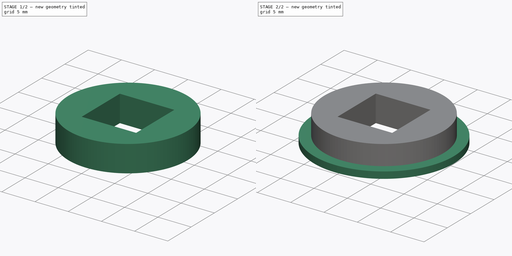
[diagram: build sequence overview — one tinted view per stage of 2, left to right]
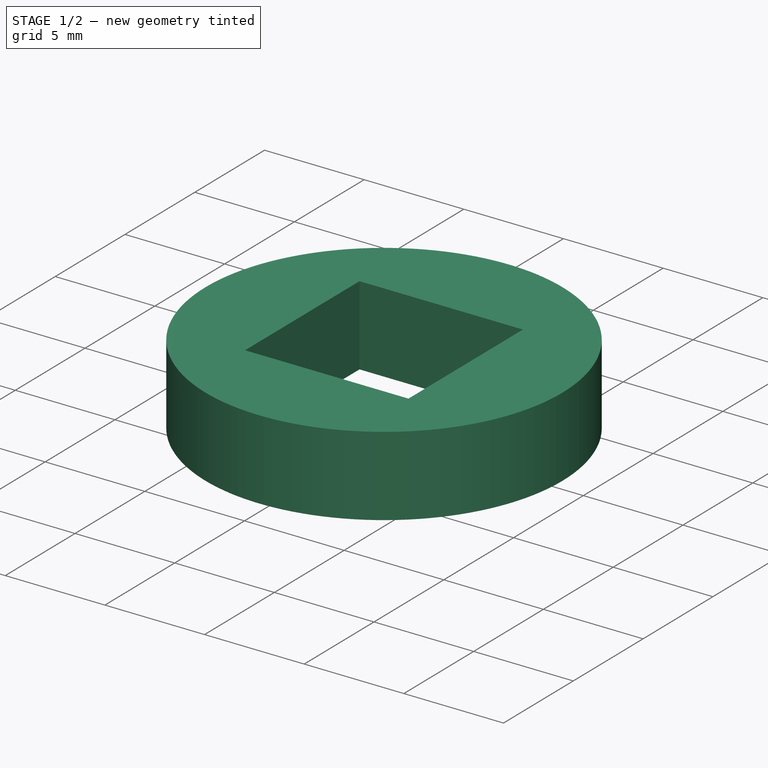
[diagram: stage 1 of 2 — iso view after this stage's code; geometry added in this stage tinted green]
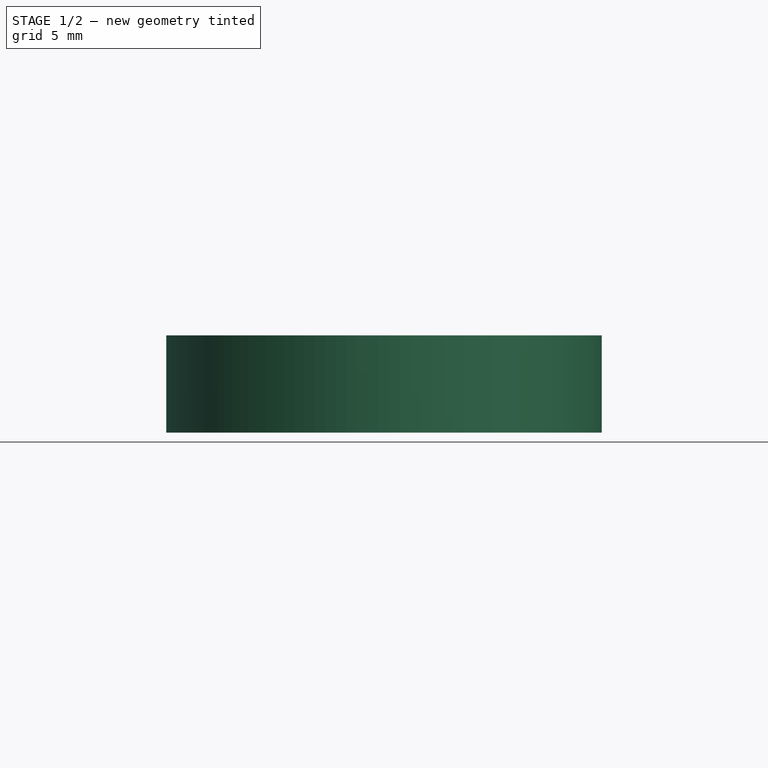
[diagram: stage 1 of 2 — front view after this stage's code; geometry added in this stage tinted green]
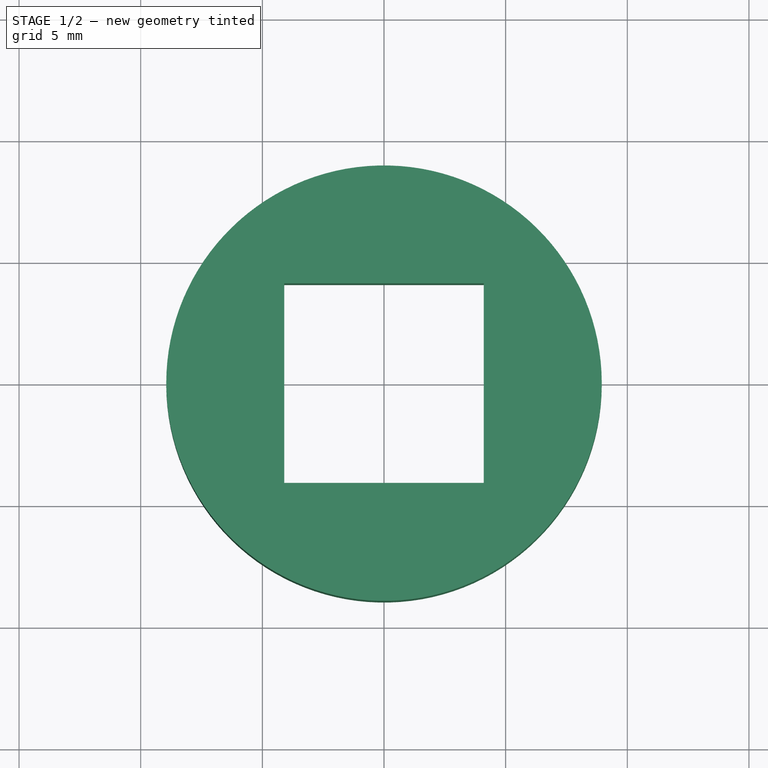
[diagram: stage 1 of 2 — top view after this stage's code; geometry added in this stage tinted green]
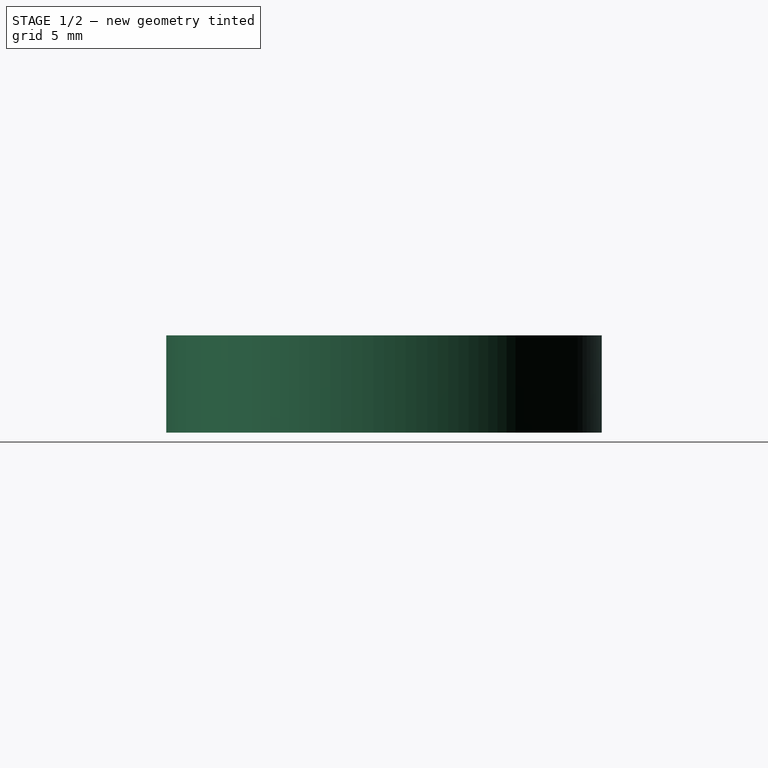
[diagram: stage 1 of 2 — right view after this stage's code; geometry added in this stage tinted green]
FCSTD DOCUMENT  (FreeCAD 0.19R)
Label: dry box hub
License: All rights reserved
LicenseURL: http://en.wikipedia.org/wiki/All_rights_reserved
objects: Sketcher::SketchObject×2, PartDesign::Pad×2, PartDesign::Body×1
note: 7 computed .brp shape members not serialized (recipe doc carries the construction recipe); baked Part::Feature solids carry a one-line shape summary decoded from their .brp

FEATURE [Sketcher::SketchObject] Sketch
  FullyConstrained = true
  MapMode = 5
  Support = -> [XY_Plane]
  sketch-geometry (5):
    g0: LineSegment StartX=-4.1 StartY=4.1 StartZ=0 EndX=4.1 EndY=4.1 EndZ=0
    g1: LineSegment StartX=4.1 StartY=4.1 StartZ=0 EndX=4.1 EndY=-4.1 EndZ=0
    g2: LineSegment StartX=4.1 StartY=-4.1 StartZ=0 EndX=-4.1 EndY=-4.1 EndZ=0
    g3: LineSegment StartX=-4.1 StartY=-4.1 StartZ=0 EndX=-4.1 EndY=4.1 EndZ=0
    g4: Circle CenterX=0 CenterY=0 CenterZ=0 NormalX=0 NormalY=0 NormalZ=1 AngleXU=0 Radius=8.95
  constraints (13):
    c: Coincident(g0,g1)
    c: Coincident(g1,g2)
    c: Coincident(g2,g3)
    c: Coincident(g3,g0)
    c: Horizontal(g0)
    c: Horizontal(g2)
    c: Vertical(g1)
    c: Vertical(g3)
    c: Coincident(g4,g-1)
    c: Symmetric(g0,g1,g4)
    c: Equal(g0,g1)
    c: DistanceX(g0,g0) = 8.2
    c: Diameter(g4) = 17.9
FEATURE [PartDesign::Pad] Pad
  Direction = (1,1,1)
  Length = 4
  Length2 = 100
  Profile = -> Sketch
  Type = 0
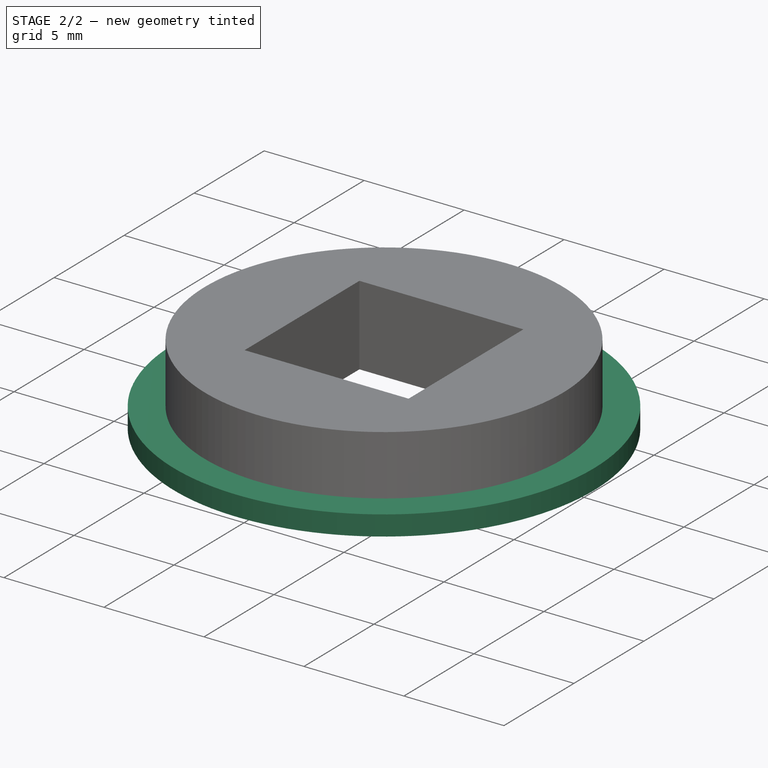
[diagram: stage 2 of 2 — iso view after this stage's code; geometry added in this stage tinted green]
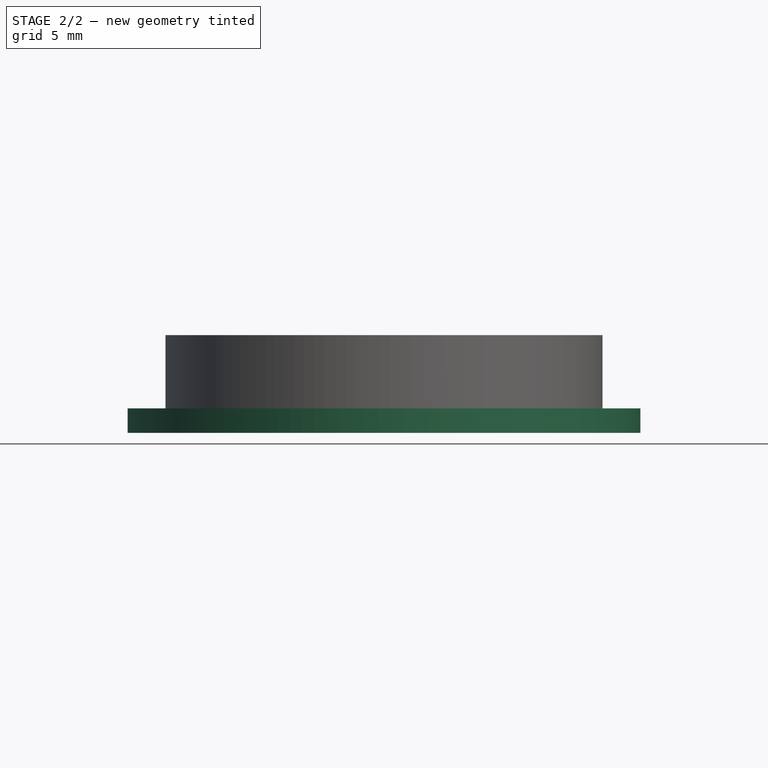
[diagram: stage 2 of 2 — front view after this stage's code; geometry added in this stage tinted green]
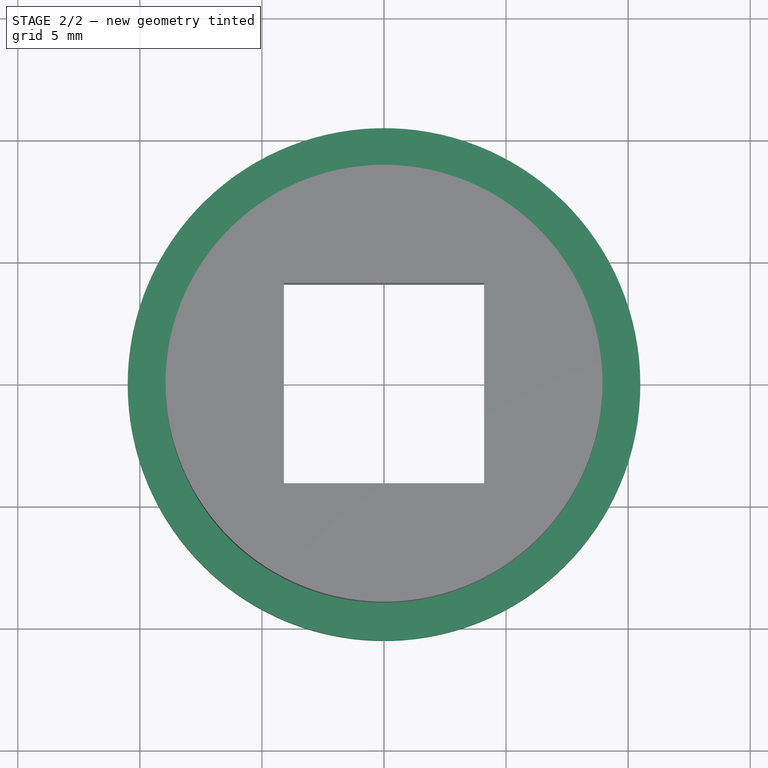
[diagram: stage 2 of 2 — top view after this stage's code; geometry added in this stage tinted green]
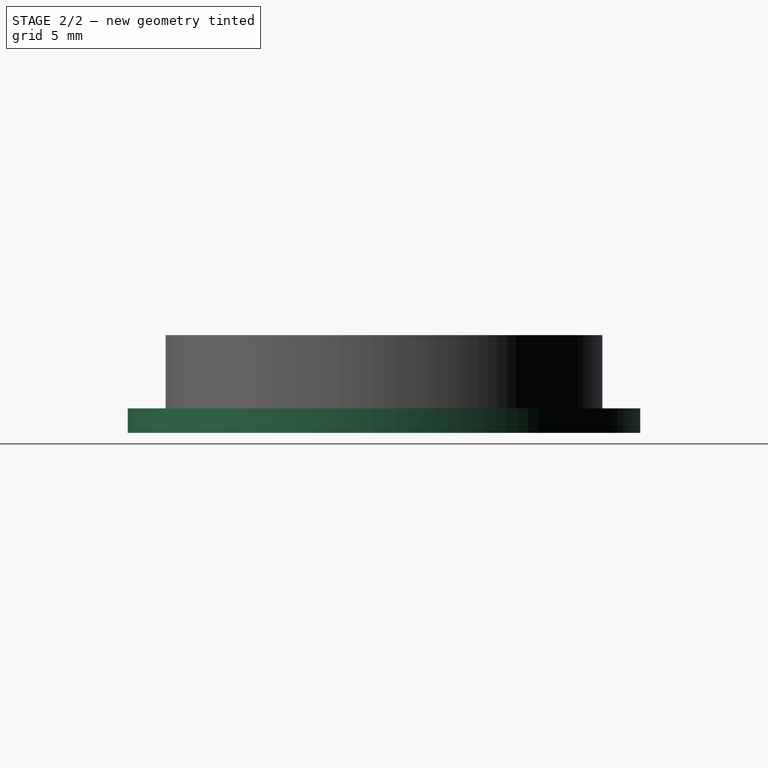
[diagram: stage 2 of 2 — right view after this stage's code; geometry added in this stage tinted green]
FEATURE [Sketcher::SketchObject] Sketch001
  FullyConstrained = true
  MapMode = 5
  Support = -> [XY_Plane]
  sketch-geometry (5):
    g0: Circle CenterX=0 CenterY=0 CenterZ=0 NormalX=0 NormalY=0 NormalZ=1 AngleXU=0 Radius=10.5
    g1: LineSegment StartX=-4.1 StartY=4.1 StartZ=0 EndX=4.1 EndY=4.1 EndZ=0
    g2: LineSegment StartX=4.1 StartY=4.1 StartZ=0 EndX=4.1 EndY=-4.1 EndZ=0
    g3: LineSegment StartX=4.1 StartY=-4.1 StartZ=0 EndX=-4.1 EndY=-4.1 EndZ=0
    g4: LineSegment StartX=-4.1 StartY=-4.1 StartZ=0 EndX=-4.1 EndY=4.1 EndZ=0
  constraints (13):
    c: Coincident(g0,g-1)
    c: Diameter(g0) = 21
    c: Coincident(g1,g2)
    c: Coincident(g2,g3)
    c: Coincident(g3,g4)
    c: Coincident(g4,g1)
    c: Horizontal(g1)
    c: Horizontal(g3)
    c: Vertical(g2)
    c: Vertical(g4)
    c: Equal(g1,g2)
    c: DistanceX(g1,g1) = 8.2
    c: Symmetric(g1,g2,g0)
FEATURE [PartDesign::Pad] Pad001
  BaseFeature = -> Pad
  Direction = (1,1,1)
  Length = 1
  Length2 = 100
  Profile = -> Sketch001
  Type = 0
FEATURE [PartDesign::Body] Body
  Group = -> [Sketch,Pad,Sketch001,Pad001]
  Origin = -> Origin
  Tip = -> Pad001
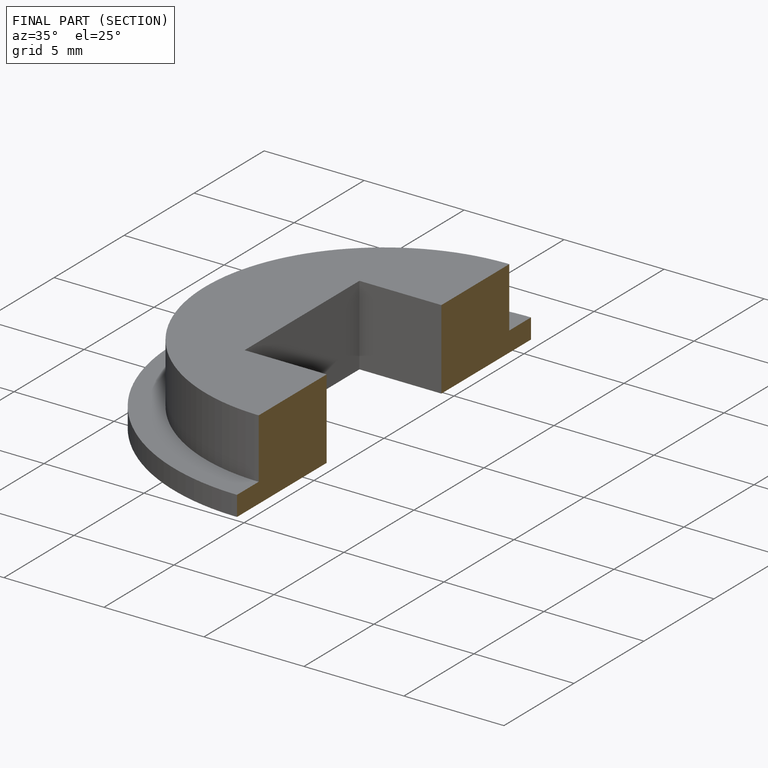
[diagram: finished part — half-section view (interior)]
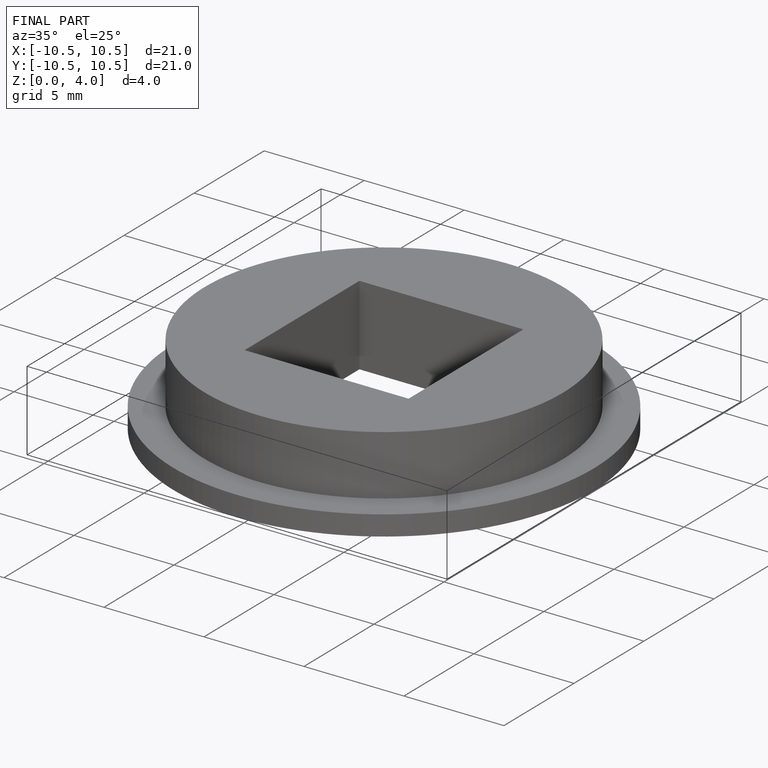
[diagram: finished part — iso view with bounding-box wireframe]
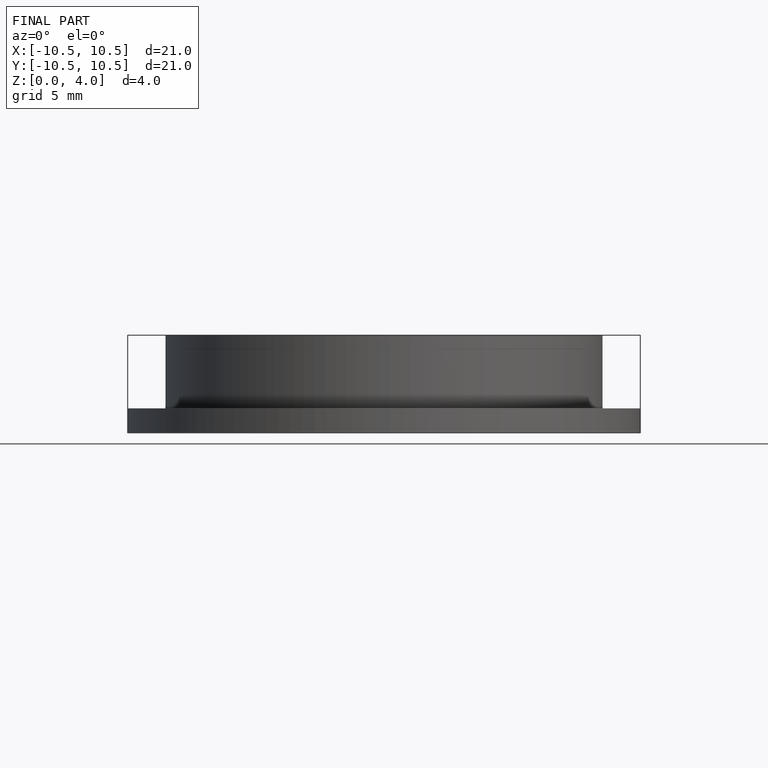
[diagram: finished part — front view with bounding-box wireframe]
